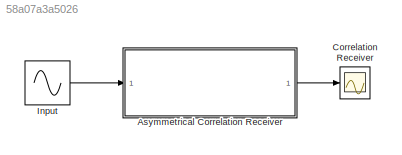
MODEL slx_58a07a3a5026
KIND model
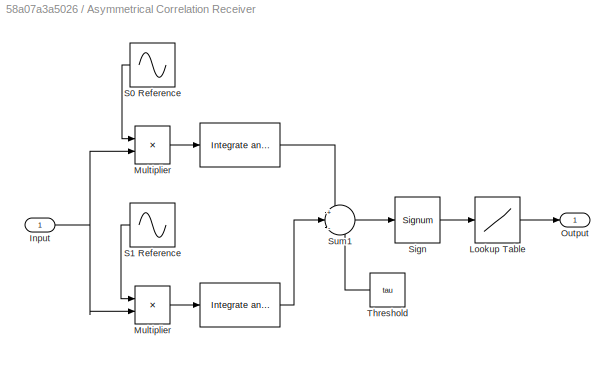
BLOCK [SubSystem] Asymmetrical Correlation Receiver 
  Ports = [1, 1]
  RequestExecContextInheritance = off
BLOCK [Reference] Asymmetrical Correlation Receiver /   REF=commfilt2/Integrate
and Dump
  LockScale = off
  Ports = [1, 1]
  SourceBlock = commfilt2/Integrate\nand Dump
  SourceType = Integrate and Dump
  accumFracLength = 30
  accumMode = Inherit via internal rule
  accumWordLength = 32
  nodump = off
  obssamples = 50
  offsetsamples = 0
  outputFracLength = 30
  outputMode = Same as accumulator
  outputWordLength = 32
  overflowMode = off
  roundingMode = Floor
BLOCK [Reference] Asymmetrical Correlation Receiver /     REF=commfilt2/Integrate
and Dump
  LockScale = off
  Ports = [1, 1]
  SourceBlock = commfilt2/Integrate\nand Dump
  SourceType = Integrate and Dump
  accumFracLength = 30
  accumMode = Inherit via internal rule
  accumWordLength = 32
  nodump = off
  obssamples = 50
  offsetsamples = 0
  outputFracLength = 30
  outputMode = Same as accumulator
  outputWordLength = 32
  overflowMode = off
  roundingMode = Floor
BLOCK [Inport] Asymmetrical Correlation Receiver /Input
  IconDisplay = Port number
BLOCK [Lookup] Asymmetrical Correlation Receiver /Lookup Table
  InputValues = [-1,0,1]
  SaturateOnIntegerOverflow = off
  Table = [-1,-1,1]
BLOCK [Product] Asymmetrical Correlation Receiver /Multiplier
  InputSameDT = off
  OutDataTypeStr = Inherit: Inherit via internal rule
  Ports = [2, 1]
  SaturateOnIntegerOverflow = off
BLOCK [Product] Asymmetrical Correlation Receiver /Multiplier 
  InputSameDT = off
  OutDataTypeStr = Inherit: Inherit via internal rule
  Ports = [2, 1]
  SaturateOnIntegerOverflow = off
BLOCK [Outport] Asymmetrical Correlation Receiver /Output
  IconDisplay = Port number
BLOCK [Sin] Asymmetrical Correlation Receiver /S0 Reference
  Frequency = 3141.59
  Ports = [0, 1]
  SampleTime = 20e-6
  VectorParams1D = off
BLOCK [Sin] Asymmetrical Correlation Receiver /S1 Reference
  Frequency = 3141.59
  Ports = [0, 1]
  SampleTime = 20e-6
  VectorParams1D = off
BLOCK [Signum] Asymmetrical Correlation Receiver /Sign
BLOCK [Sum] Asymmetrical Correlation Receiver /Sum1
  IconShape = round
  InputSameDT = off
  Inputs = +|-|-
  OutDataTypeStr = Inherit: Inherit via internal rule
  Ports = [3, 1]
  SaturateOnIntegerOverflow = off
BLOCK [Constant] Asymmetrical Correlation Receiver /Threshold
  Value = tau
BLOCK [Scope] Correlation Receiver
  DataFormat = StructureWithTime
  Floating = off
  NumInputPorts = 1
  Ports = [1]
  SampleTime = 0
  ShowLegends = off
  YMax = 30
  YMin = 0
BLOCK [Sin] Input
  Frequency = 3141.5926
  Ports = [0, 1]
  SampleTime = 20e-6
LINE Asymmetrical Correlation Receiver /   :1 -> Asymmetrical Correlation Receiver /Sum1:2
LINE Asymmetrical Correlation Receiver / :1 -> Asymmetrical Correlation Receiver /Sum1:1
NET Asymmetrical Correlation Receiver /Input:1 -> Asymmetrical Correlation Receiver /Multiplier :2, Asymmetrical Correlation Receiver /Multiplier:2
LINE Asymmetrical Correlation Receiver /Lookup Table:1 -> Asymmetrical Correlation Receiver /Output:1
LINE Asymmetrical Correlation Receiver /Multiplier :1 -> Asymmetrical Correlation Receiver /   :1
LINE Asymmetrical Correlation Receiver /Multiplier:1 -> Asymmetrical Correlation Receiver / :1
LINE Asymmetrical Correlation Receiver /S0 Reference:1 -> Asymmetrical Correlation Receiver /Multiplier:1
LINE Asymmetrical Correlation Receiver /S1 Reference:1 -> Asymmetrical Correlation Receiver /Multiplier :1
LINE Asymmetrical Correlation Receiver /Sign:1 -> Asymmetrical Correlation Receiver /Lookup Table:1
LINE Asymmetrical Correlation Receiver /Sum1:1 -> Asymmetrical Correlation Receiver /Sign:1
LINE Asymmetrical Correlation Receiver /Threshold:1 -> Asymmetrical Correlation Receiver /Sum1:3
LINE Asymmetrical Correlation Receiver :1 -> Correlation Receiver:1
LINE Input:1 -> Asymmetrical Correlation Receiver :1
note: NET lines group one-source signal fan-out (src -> all destinations, sorted); 1:1 wires keep LINE
